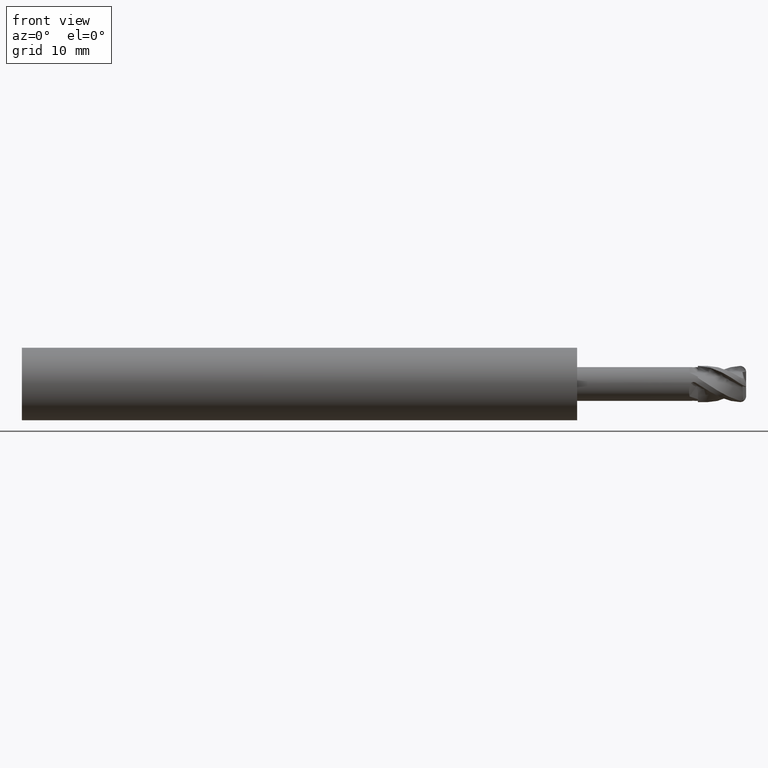
[diagram: clean part render]
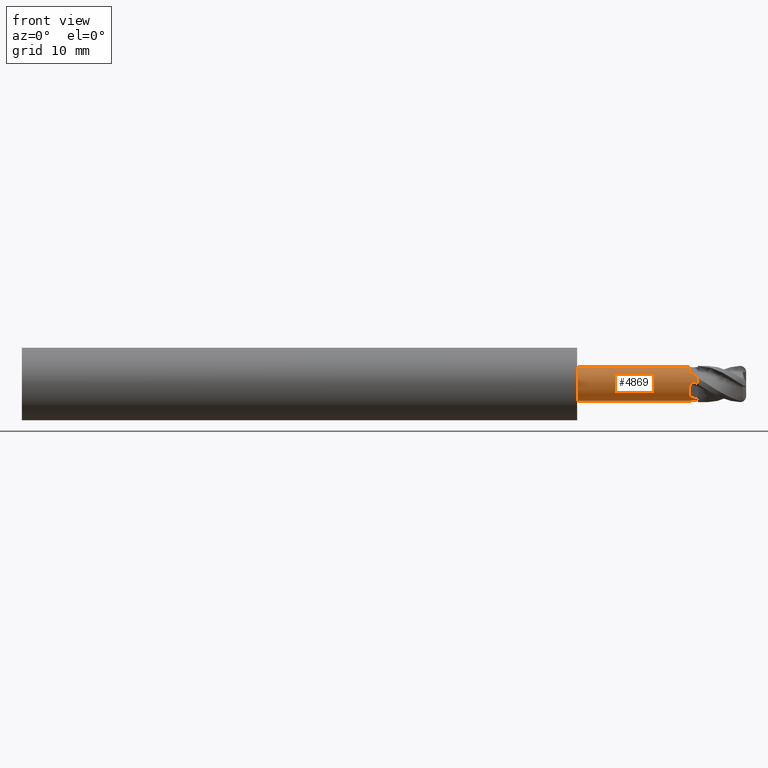
[diagram: same view with one face highlighted and labeled with its STEP entity id]
A machine part, front view. The second image highlights one B-rep face of the part: STEP entity #4869.
In plain terms, the highlighted cylindrical surface (edge-blend (fillet) strip) has radius 1.4 mm, axis along (-1, -0, -0).
Its self-contained STEP definition (entity closure, byte-faithful):
#6 = VERTEX_POINT ( 'NONE', #5009 ) ;
#7 = VERTEX_POINT ( 'NONE', #5034 ) ;
#20 = B_SPLINE_CURVE_WITH_KNOTS ( 'NONE', 3,
 ( #3195, #3199, #3200, #3201, #3202, #3203, #3204, #3205, #3206, #3207 ),
 .UNSPECIFIED., .F., .F.,
 ( 4, 2, 2, 2, 4 ),
 ( 0.0000000000000000000, 0.0003033182496078574000, 0.0006066364992157148000, 0.0009099547488235724100, 0.001213272998431430000 ),
 .UNSPECIFIED. ) ;
#24 = B_SPLINE_CURVE_WITH_KNOTS ( 'NONE', 3,
 ( #3275, #3279, #3280, #3281 ),
 .UNSPECIFIED., .F., .F.,
 ( 4, 4 ),
 ( 0.0000000000000000000, 3.784444954740354700E-005 ),
 .UNSPECIFIED. ) ;
#27 = B_SPLINE_CURVE_WITH_KNOTS ( 'NONE', 3,
 ( #3149, #3172, #3173, #3174, #3175, #3176, #3177, #3178 ),
 .UNSPECIFIED., .F., .F.,
 ( 4, 2, 2, 4 ),
 ( 4.065758146820641600E-020, 0.0002343457934825256200, 0.0003515186902237884300, 0.0004686915869650511900 ),
 .UNSPECIFIED. ) ;
#28 = B_SPLINE_CURVE_WITH_KNOTS ( 'NONE', 3,
 ( #3121, #3127, #3128, #3129, #3130, #3131, #3132 ),
 .UNSPECIFIED., .F., .F.,
 ( 4, 3, 4 ),
 ( 0.0000000000000000000, 0.0001041887297999596100, 0.0002084210057376804300 ),
 .UNSPECIFIED. ) ;
#767 = CARTESIAN_POINT ( 'NONE',  ( 19.31721893854416200, -0.9449999999999814100, -1.036043653865183800 ) ) ;
#768 = CARTESIAN_POINT ( 'NONE',  ( 20.00000000000000400, 9.461181217819718000E-015, -1.401194375000013800 ) ) ;
#783 = CARTESIAN_POINT ( 'NONE',  ( 19.82249120519000100, -0.1091204051038793800, -1.395740927676010000 ) ) ;
#784 = CARTESIAN_POINT ( 'NONE',  ( 10.00000000000000200, 1.714505518806309400E-016, -1.400000000000011900 ) ) ;
#796 = CARTESIAN_POINT ( 'NONE',  ( 19.41160318497808000, -0.03522190998724845200, -1.399556864531372500 ) ) ;
#797 = CARTESIAN_POINT ( 'NONE',  ( 10.00000000000000200, 0.0000000000000000000, 1.400000000000011900 ) ) ;
#809 = CARTESIAN_POINT ( 'NONE',  ( 19.41160318497806600, -1.399556864531371800, 0.03522190998725083900 ) ) ;
#827 = CARTESIAN_POINT ( 'NONE',  ( 19.82249120518999400, -1.395740927676009800, 0.1091204051038743200 ) ) ;
#828 = CARTESIAN_POINT ( 'NONE',  ( 20.00000000000001100, -1.401194375000013300, -1.437461984949423200E-014 ) ) ;
#834 = CARTESIAN_POINT ( 'NONE',  ( 19.39660591570775600, -1.926762785778301700E-012, -1.400000000000011900 ) ) ;
#839 = CARTESIAN_POINT ( 'NONE',  ( 19.31721893854416200, -1.036043653865176300, 0.9449999999999851900 ) ) ;
#840 = CARTESIAN_POINT ( 'NONE',  ( 20.00000000000001400, -0.5995890718163607900, -1.265105902665239400 ) ) ;
#1927 = CIRCLE ( 'NONE', #4719, 1.400000000000013200 ) ;
#1936 = VECTOR ( 'NONE', #2943, 1000.000000000000000 ) ;
#1938 = CIRCLE ( 'NONE', #4790, 1.400000000000013200 ) ;
#1942 = CIRCLE ( 'NONE', #4857, 1.400000000000011900 ) ;
#1965 = EDGE_LOOP ( 'NONE', ( #4586, #4501, #4534, #4467, #4533, #4497, #4526, #4592, #4520, #4517, #4490, #4441, #4456, #4535 ) ) ;
#1985 = LINE ( 'NONE', #3305, #2082 ) ;
#1996 = FACE_OUTER_BOUND ( 'NONE', #1965, .T. ) ;
#2001 = CYLINDRICAL_SURFACE ( 'NONE', #4656, 1.400000000000012600 ) ;
#2082 = VECTOR ( 'NONE', #3306, 1000.000000000000000 ) ;
#2091 = LINE ( 'NONE', #2942, #1936 ) ;
#2647 = CARTESIAN_POINT ( 'NONE',  ( 19.82249120518999400, -1.395740927676009800, 0.1091204051038743200 ) ) ;
#2659 = CARTESIAN_POINT ( 'NONE',  ( 19.75499733876239400, -1.392503861952336000, 0.1505251736422308400 ) ) ;
#2660 = CARTESIAN_POINT ( 'NONE',  ( 19.67591922550010300, -1.389514329051685800, 0.1712452401150943200 ) ) ;
#2661 = CARTESIAN_POINT ( 'NONE',  ( 19.55884398065612800, -1.391023501469026000, 0.1583425687758200600 ) ) ;
#2662 = CARTESIAN_POINT ( 'NONE',  ( 19.51987341577852300, -1.392540466093839000, 0.1459538783544696000 ) ) ;
#2663 = CARTESIAN_POINT ( 'NONE',  ( 19.45407472852583600, -1.396397002782450400, 0.1026980765922320100 ) ) ;
#2664 = CARTESIAN_POINT ( 'NONE',  ( 19.42766611960309600, -1.398637825718707500, 0.07174028958395925500 ) ) ;
#2665 = CARTESIAN_POINT ( 'NONE',  ( 19.41160318497806600, -1.399556864531371800, 0.03522190998725083900 ) ) ;
#2676 = CARTESIAN_POINT ( 'NONE',  ( 20.00000000000000400, 0.0000000000000000000, 0.0000000000000000000 ) ) ;
#2686 = DIRECTION ( 'NONE',  ( -1.000000000000000000, -0.0000000000000000000, -0.0000000000000000000 ) ) ;
#2687 = DIRECTION ( 'NONE',  ( 0.0000000000000000000, 0.0000000000000000000, 1.000000000000000000 ) ) ;
#2803 = CARTESIAN_POINT ( 'NONE',  ( 20.00000000000001400, -0.5995890718163607900, -1.265105902665239400 ) ) ;
#2818 = CARTESIAN_POINT ( 'NONE',  ( 20.00000000000000400, 0.0000000000000000000, 0.0000000000000000000 ) ) ;
#2819 = CARTESIAN_POINT ( 'NONE',  ( 19.77288760835365600, -0.7260596831038166300, -1.205165943272006800 ) ) ;
#2820 = CARTESIAN_POINT ( 'NONE',  ( 19.54895498028822900, -0.8448885077343601900, -1.124532829183790400 ) ) ;
#2821 = CARTESIAN_POINT ( 'NONE',  ( 19.31721893854416200, -0.9449999999999814100, -1.036043653865183800 ) ) ;
#2823 = DIRECTION ( 'NONE',  ( -1.000000000000000000, -0.0000000000000000000, -0.0000000000000000000 ) ) ;
#2824 = DIRECTION ( 'NONE',  ( 0.0000000000000000000, 0.0000000000000000000, 1.000000000000000000 ) ) ;
#2879 = CARTESIAN_POINT ( 'NONE',  ( 20.00000000000001100, -1.401194375000013300, -1.437461984949423200E-014 ) ) ;
#2887 = CARTESIAN_POINT ( 'NONE',  ( 19.97041839941816100, -1.400000000000032300, 0.01819539496216669000 ) ) ;
#2888 = CARTESIAN_POINT ( 'NONE',  ( 19.94083927871404100, -1.399645133833997200, 0.03639828347391114300 ) ) ;
#2889 = CARTESIAN_POINT ( 'NONE',  ( 19.91126212898969400, -1.398935399405055700, 0.05458707073524551900 ) ) ;
#2890 = CARTESIAN_POINT ( 'NONE',  ( 19.88167261903768300, -1.398225368379613100, 0.07278345905190548900 ) ) ;
#2891 = CARTESIAN_POINT ( 'NONE',  ( 19.85208198229115000, -1.397160130266200700, 0.09096762114156777000 ) ) ;
#2892 = CARTESIAN_POINT ( 'NONE',  ( 19.82249120518999400, -1.395740927676009800, 0.1091204051038743200 ) ) ;
#2920 = CARTESIAN_POINT ( 'NONE',  ( 10.00000000000000200, 0.0000000000000000000, 0.0000000000000000000 ) ) ;
#2921 = DIRECTION ( 'NONE',  ( -1.000000000000000000, -0.0000000000000000000, -0.0000000000000000000 ) ) ;
#2922 = DIRECTION ( 'NONE',  ( 0.0000000000000000000, 0.0000000000000000000, 1.000000000000000000 ) ) ;
#2942 = CARTESIAN_POINT ( 'NONE',  ( -39.76065438357068200, 0.0000000000000000000, 1.400000000000012600 ) ) ;
#2943 = DIRECTION ( 'NONE',  ( -1.000000000000000000, -0.0000000000000000000, -0.0000000000000000000 ) ) ;
#2991 = CARTESIAN_POINT ( 'NONE',  ( 19.39660591570775600, 1.928199353656845400E-012, 1.400000000000012300 ) ) ;
#2995 = CARTESIAN_POINT ( 'NONE',  ( 19.35895488746409800, -0.09140429433317755200, 1.400000000000139400 ) ) ;
#2996 = CARTESIAN_POINT ( 'NONE',  ( 19.33020076667952500, -0.1846246584017841300, 1.391123978551957100 ) ) ;
#2997 = CARTESIAN_POINT ( 'NONE',  ( 19.28843637903233300, -0.3737475078389734300, 1.352636310534491000 ) ) ;
#2998 = CARTESIAN_POINT ( 'NONE',  ( 19.27597827517180900, -0.4678619200195471800, 1.323139977957717100 ) ) ;
#2999 = CARTESIAN_POINT ( 'NONE',  ( 19.26588407320935300, -0.6475468523452812000, 1.245101301698798600 ) ) ;
#3000 = CARTESIAN_POINT ( 'NONE',  ( 19.26823887666498400, -0.7348239180004719800, 1.195655587717314700 ) ) ;
#3001 = CARTESIAN_POINT ( 'NONE',  ( 19.28512200786810000, -0.8938756937329750400, 1.081917149812588100 ) ) ;
#3002 = CARTESIAN_POINT ( 'NONE',  ( 19.29964981345870000, -0.9672544518794408100, 1.016803730004862700 ) ) ;
#3003 = CARTESIAN_POINT ( 'NONE',  ( 19.31721893854416200, -1.036043653865176300, 0.9449999999999851900 ) ) ;
#3115 = CARTESIAN_POINT ( 'NONE',  ( 19.99999999999999600, -1.265105902674722200, 0.5995890717963547900 ) ) ;
#3121 = CARTESIAN_POINT ( 'NONE',  ( 20.00000000000000400, 9.461181217819718000E-015, -1.401194375000013800 ) ) ;
#3122 = CARTESIAN_POINT ( 'NONE',  ( 19.77288760834999000, -1.205165943282844800, 0.7260596830861172400 ) ) ;
#3123 = CARTESIAN_POINT ( 'NONE',  ( 19.54895498029159400, -1.124532829185289400, 0.8448885077327221700 ) ) ;
#3124 = CARTESIAN_POINT ( 'NONE',  ( 19.31721893854416200, -1.036043653865176300, 0.9449999999999851900 ) ) ;
#3127 = CARTESIAN_POINT ( 'NONE',  ( 19.97041839941815800, -0.01819539496218285400, -1.400000000000017000 ) ) ;
#3128 = CARTESIAN_POINT ( 'NONE',  ( 19.94083927871403400, -0.03639828347391807500, -1.399645133833996400 ) ) ;
#3129 = CARTESIAN_POINT ( 'NONE',  ( 19.91126212898968400, -0.05458707073525292900, -1.398935399405054600 ) ) ;
#3130 = CARTESIAN_POINT ( 'NONE',  ( 19.88167261903767600, -0.07278345905191066500, -1.398225368379612200 ) ) ;
#3131 = CARTESIAN_POINT ( 'NONE',  ( 19.85208198229114600, -0.09096762114157300200, -1.397160130266201100 ) ) ;
#3132 = CARTESIAN_POINT ( 'NONE',  ( 19.82249120519000100, -0.1091204051038793800, -1.395740927676010000 ) ) ;
#3149 = CARTESIAN_POINT ( 'NONE',  ( 19.82249120519000100, -0.1091204051038793800, -1.395740927676010000 ) ) ;
#3172 = CARTESIAN_POINT ( 'NONE',  ( 19.75499733876240100, -0.1505251736422341100, -1.392503861952334900 ) ) ;
#3173 = CARTESIAN_POINT ( 'NONE',  ( 19.67591922550010600, -0.1712452401150981200, -1.389514329051686500 ) ) ;
#3174 = CARTESIAN_POINT ( 'NONE',  ( 19.55884398065614600, -0.1583425687758285000, -1.391023501469026900 ) ) ;
#3175 = CARTESIAN_POINT ( 'NONE',  ( 19.51987341577853000, -0.1459538783544759600, -1.392540466093838300 ) ) ;
#3176 = CARTESIAN_POINT ( 'NONE',  ( 19.45407472852585300, -0.1026980765922370600, -1.396397002782451300 ) ) ;
#3177 = CARTESIAN_POINT ( 'NONE',  ( 19.42766611960310300, -0.07174028958396165600, -1.398637825718711100 ) ) ;
#3178 = CARTESIAN_POINT ( 'NONE',  ( 19.41160318497808000, -0.03522190998724845200, -1.399556864531372500 ) ) ;
#3195 = CARTESIAN_POINT ( 'NONE',  ( 19.41160318497806600, -1.399556864531371800, 0.03522190998725083900 ) ) ;
#3199 = CARTESIAN_POINT ( 'NONE',  ( 19.37032305043569400, -1.401918703101938200, -0.05862670258224714200 ) ) ;
#3200 = CARTESIAN_POINT ( 'NONE',  ( 19.33874036490193400, -1.394963139818457200, -0.1544925616182812000 ) ) ;
#3201 = CARTESIAN_POINT ( 'NONE',  ( 19.29244543088700000, -1.359367855080885400, -0.3491549049066029500 ) ) ;
#3202 = CARTESIAN_POINT ( 'NONE',  ( 19.27818082196119000, -1.330508738668173500, -0.4471507914079347900 ) ) ;
#3203 = CARTESIAN_POINT ( 'NONE',  ( 19.26581350730677000, -1.252563854595989600, -0.6334675398856306500 ) ) ;
#3204 = CARTESIAN_POINT ( 'NONE',  ( 19.26757380751666900, -1.202433340213645300, -0.7241199147124781600 ) ) ;
#3205 = CARTESIAN_POINT ( 'NONE',  ( 19.28419404773781000, -1.086076456306430900, -0.8891757529293158300 ) ) ;
#3206 = CARTESIAN_POINT ( 'NONE',  ( 19.29901840083180900, -1.019115544398056000, -0.9651394651343001600 ) ) ;
#3207 = CARTESIAN_POINT ( 'NONE',  ( 19.31721893854416200, -0.9449999999999814100, -1.036043653865183800 ) ) ;
#3275 = CARTESIAN_POINT ( 'NONE',  ( 19.41160318497808000, -0.03522190998724845200, -1.399556864531372500 ) ) ;
#3279 = CARTESIAN_POINT ( 'NONE',  ( 19.40645273995534100, -0.02351259448093806800, -1.399851546703442500 ) ) ;
#3280 = CARTESIAN_POINT ( 'NONE',  ( 19.40145481082819900, -0.01177152012936009300, -1.399999999999996100 ) ) ;
#3281 = CARTESIAN_POINT ( 'NONE',  ( 19.39660591570775600, -1.926762785778301700E-012, -1.400000000000011900 ) ) ;
#3305 = CARTESIAN_POINT ( 'NONE',  ( -39.76065438357068200, 1.714505518806309900E-016, -1.400000000000012600 ) ) ;
#3306 = DIRECTION ( 'NONE',  ( -1.000000000000000000, -0.0000000000000000000, -0.0000000000000000000 ) ) ;
#3562 = B_SPLINE_CURVE_WITH_KNOTS ( 'NONE', 3,
 ( #3115, #3122, #3123, #3124 ),
 .UNSPECIFIED., .F., .F.,
 ( 4, 4 ),
 ( 0.0000000000000000000, 0.0007978802246601688800 ),
 .UNSPECIFIED. ) ;
#3578 = B_SPLINE_CURVE_WITH_KNOTS ( 'NONE', 3,
 ( #2647, #2659, #2660, #2661, #2662, #2663, #2664, #2665 ),
 .UNSPECIFIED., .F., .F.,
 ( 4, 2, 2, 4 ),
 ( 5.421010862427522200E-020, 0.0002343457934825221500, 0.0003515186902237883300, 0.0004686915869650545500 ),
 .UNSPECIFIED. ) ;
#3597 = B_SPLINE_CURVE_WITH_KNOTS ( 'NONE', 3,
 ( #2803, #2819, #2820, #2821 ),
 .UNSPECIFIED., .F., .F.,
 ( 4, 4 ),
 ( 0.0000000000000000000, 0.0007978802246487533200 ),
 .UNSPECIFIED. ) ;
#3606 = B_SPLINE_CURVE_WITH_KNOTS ( 'NONE', 3,
 ( #2879, #2887, #2888, #2889, #2890, #2891, #2892 ),
 .UNSPECIFIED., .F., .F.,
 ( 4, 3, 4 ),
 ( 0.0000000000000000000, 0.0001041887297999553200, 0.0002084210057376875400 ),
 .UNSPECIFIED. ) ;
#3616 = B_SPLINE_CURVE_WITH_KNOTS ( 'NONE', 3,
 ( #2991, #2995, #2996, #2997, #2998, #2999, #3000, #3001, #3002, #3003 ),
 .UNSPECIFIED., .F., .F.,
 ( 4, 2, 2, 2, 4 ),
 ( 3.784444954740226600E-005, 0.0003317015867684075700, 0.0006255587239894128200, 0.0009194158612104181200, 0.001213272998431423700 ),
 .UNSPECIFIED. ) ;
#3873 = CARTESIAN_POINT ( 'NONE',  ( -39.76065438357068200, 0.0000000000000000000, 0.0000000000000000000 ) ) ;
#3874 = DIRECTION ( 'NONE',  ( -1.000000000000000000, -0.0000000000000000000, -0.0000000000000000000 ) ) ;
#3875 = DIRECTION ( 'NONE',  ( 0.0000000000000000000, 0.0000000000000000000, 1.000000000000000000 ) ) ;
#4441 = ORIENTED_EDGE ( 'NONE', *, *, #4736, .F. ) ;
#4456 = ORIENTED_EDGE ( 'NONE', *, *, #4722, .T. ) ;
#4467 = ORIENTED_EDGE ( 'NONE', *, *, #4766, .F. ) ;
#4490 = ORIENTED_EDGE ( 'NONE', *, *, #4765, .T. ) ;
#4497 = ORIENTED_EDGE ( 'NONE', *, *, #4684, .T. ) ;
#4501 = ORIENTED_EDGE ( 'NONE', *, *, #4829, .F. ) ;
#4517 = ORIENTED_EDGE ( 'NONE', *, *, #4685, .T. ) ;
#4520 = ORIENTED_EDGE ( 'NONE', *, *, #4700, .F. ) ;
#4526 = ORIENTED_EDGE ( 'NONE', *, *, #4797, .F. ) ;
#4533 = ORIENTED_EDGE ( 'NONE', *, *, #4643, .T. ) ;
#4534 = ORIENTED_EDGE ( 'NONE', *, *, #4783, .F. ) ;
#4535 = ORIENTED_EDGE ( 'NONE', *, *, #4715, .F. ) ;
#4586 = ORIENTED_EDGE ( 'NONE', *, *, #4838, .F. ) ;
#4592 = ORIENTED_EDGE ( 'NONE', *, *, #4638, .F. ) ;
#4638 = EDGE_CURVE ( 'NONE', #5018, #4996, #3578, .T. ) ;
#4643 = EDGE_CURVE ( 'NONE', #4929, #5035, #1938, .T. ) ;
#4656 = AXIS2_PLACEMENT_3D ( 'NONE', #3873, #3874, #3875 ) ;
#4684 = EDGE_CURVE ( 'NONE', #5035, #4928, #3597, .T. ) ;
#4685 = EDGE_CURVE ( 'NONE', #5019, #7, #1927, .T. ) ;
#4700 = EDGE_CURVE ( 'NONE', #5019, #5018, #3606, .T. ) ;
#4715 = EDGE_CURVE ( 'NONE', #4951, #4982, #1942, .T. ) ;
#4719 = AXIS2_PLACEMENT_3D ( 'NONE', #2818, #2823, #2824 ) ;
#4722 = EDGE_CURVE ( 'NONE', #6, #4982, #2091, .T. ) ;
#4736 = EDGE_CURVE ( 'NONE', #6, #5033, #3616, .T. ) ;
#4765 = EDGE_CURVE ( 'NONE', #7, #5033, #3562, .T. ) ;
#4766 = EDGE_CURVE ( 'NONE', #4929, #4949, #28, .T. ) ;
#4783 = EDGE_CURVE ( 'NONE', #4949, #4981, #27, .T. ) ;
#4790 = AXIS2_PLACEMENT_3D ( 'NONE', #2676, #2686, #2687 ) ;
#4797 = EDGE_CURVE ( 'NONE', #4996, #4928, #20, .T. ) ;
#4829 = EDGE_CURVE ( 'NONE', #4981, #5026, #24, .T. ) ;
#4838 = EDGE_CURVE ( 'NONE', #5026, #4951, #1985, .T. ) ;
#4857 = AXIS2_PLACEMENT_3D ( 'NONE', #2920, #2921, #2922 ) ;
#4869 = ADVANCED_FACE ( 'NONE', ( #1996 ), #2001, .T. ) ;
#4928 = VERTEX_POINT ( 'NONE', #767 ) ;
#4929 = VERTEX_POINT ( 'NONE', #768 ) ;
#4949 = VERTEX_POINT ( 'NONE', #783 ) ;
#4951 = VERTEX_POINT ( 'NONE', #784 ) ;
#4981 = VERTEX_POINT ( 'NONE', #796 ) ;
#4982 = VERTEX_POINT ( 'NONE', #797 ) ;
#4996 = VERTEX_POINT ( 'NONE', #809 ) ;
#5009 = CARTESIAN_POINT ( 'NONE',  ( 19.39660591570775600, 1.928199353656845400E-012, 1.400000000000012300 ) ) ;
#5018 = VERTEX_POINT ( 'NONE', #827 ) ;
#5019 = VERTEX_POINT ( 'NONE', #828 ) ;
#5026 = VERTEX_POINT ( 'NONE', #834 ) ;
#5033 = VERTEX_POINT ( 'NONE', #839 ) ;
#5034 = CARTESIAN_POINT ( 'NONE',  ( 19.99999999999999600, -1.265105902674722200, 0.5995890717963547900 ) ) ;
#5035 = VERTEX_POINT ( 'NONE', #840 ) ;